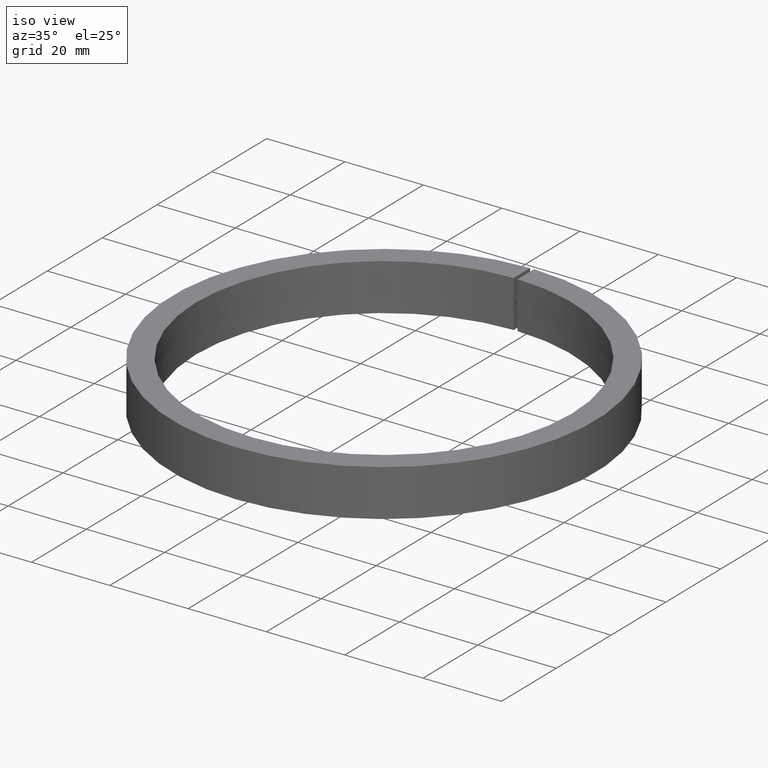
[diagram: clean part render]
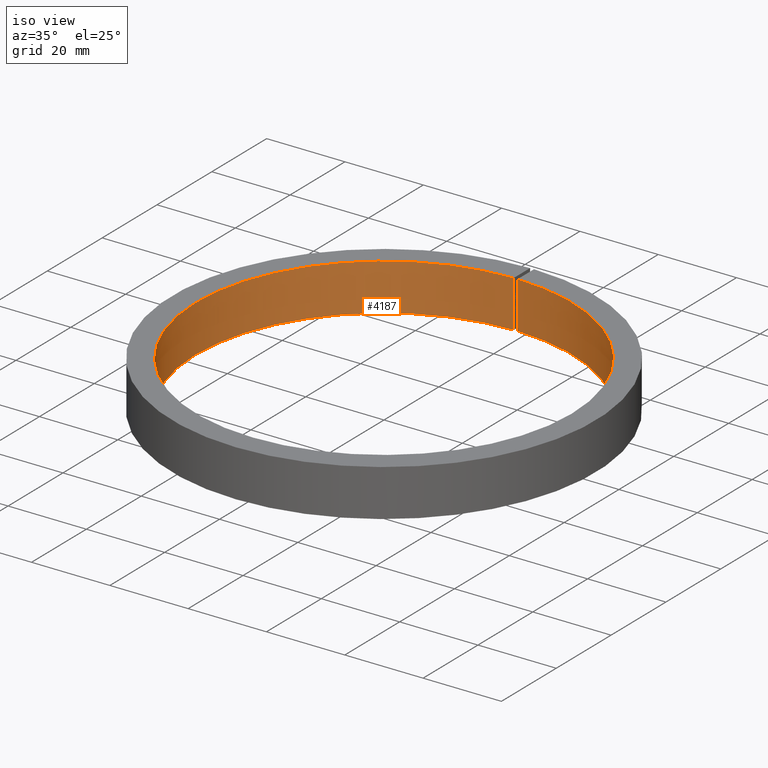
[diagram: same view with one face highlighted and labeled with its STEP entity id]
A machine part, iso view. The second image highlights one B-rep face of the part: STEP entity #4187.
In plain terms, the highlighted cylindrical surface (partial cylindrical patch) has radius 48 mm, axis along (-0, -0, -1).
Its self-contained STEP definition (entity closure, byte-faithful):
#159 = FACE_OUTER_BOUND ( 'NONE', #11526, .T. ) ;
#986 = EDGE_CURVE ( 'NONE', #9108, #4882, #10826, .T. ) ;
#1375 = ORIENTED_EDGE ( 'NONE', *, *, #3252, .F. ) ;
#1768 = VERTEX_POINT ( 'NONE', #7676 ) ;
#1870 = DIRECTION ( 'NONE',  ( -0.0000000000000000000, -0.0000000000000000000, -1.000000000000000000 ) ) ;
#1974 = CARTESIAN_POINT ( 'NONE',  ( 0.0000000000000000000, 0.0000000000000000000, -6.000000000000004400 ) ) ;
#2564 = CARTESIAN_POINT ( 'NONE',  ( 0.0000000000000000000, 0.0000000000000000000, 0.0000000000000000000 ) ) ;
#2723 = AXIS2_PLACEMENT_3D ( 'NONE', #1974, #8504, #4711 ) ;
#3252 = EDGE_CURVE ( 'NONE', #4882, #1768, #10226, .T. ) ;
#3523 = DIRECTION ( 'NONE',  ( -0.0000000000000000000, -0.0000000000000000000, -1.000000000000000000 ) ) ;
#3744 = DIRECTION ( 'NONE',  ( -1.000000000000000000, 0.0000000000000000000, 0.0000000000000000000 ) ) ;
#3840 = DIRECTION ( 'NONE',  ( -0.0000000000000000000, -0.0000000000000000000, 1.000000000000000000 ) ) ;
#3854 = AXIS2_PLACEMENT_3D ( 'NONE', #2564, #3523, #6651 ) ;
#4187 = ADVANCED_FACE ( 'NONE', ( #159 ), #11672, .F. ) ;
#4612 = VERTEX_POINT ( 'NONE', #6974 ) ;
#4711 = DIRECTION ( 'NONE',  ( -1.000000000000000000, 0.0000000000000000000, 0.0000000000000000000 ) ) ;
#4796 = VECTOR ( 'NONE', #3840, 1000.000000000000000 ) ;
#4828 = CARTESIAN_POINT ( 'NONE',  ( -0.5000000000000000000, 47.99739576268696300, -6.000000000000004400 ) ) ;
#4882 = VERTEX_POINT ( 'NONE', #12153 ) ;
#5039 = EDGE_CURVE ( 'NONE', #4612, #1768, #10343, .T. ) ;
#5985 = ORIENTED_EDGE ( 'NONE', *, *, #986, .F. ) ;
#6493 = ORIENTED_EDGE ( 'NONE', *, *, #11119, .T. ) ;
#6651 = DIRECTION ( 'NONE',  ( -1.000000000000000000, 0.0000000000000000000, 0.0000000000000000000 ) ) ;
#6830 = DIRECTION ( 'NONE',  ( -0.0000000000000000000, -0.0000000000000000000, 1.000000000000000000 ) ) ;
#6974 = CARTESIAN_POINT ( 'NONE',  ( -0.5000000000000000000, 47.99739576268696300, -6.000000000000004400 ) ) ;
#7676 = CARTESIAN_POINT ( 'NONE',  ( -0.5000000000000000000, 47.99739576268696300, 5.999999999999996400 ) ) ;
#8504 = DIRECTION ( 'NONE',  ( -0.0000000000000000000, -0.0000000000000000000, -1.000000000000000000 ) ) ;
#9108 = VERTEX_POINT ( 'NONE', #10683 ) ;
#9755 = VECTOR ( 'NONE', #6830, 1000.000000000000000 ) ;
#9806 = CIRCLE ( 'NONE', #2723, 48.00000000000000000 ) ;
#9852 = ORIENTED_EDGE ( 'NONE', *, *, #5039, .T. ) ;
#10226 = CIRCLE ( 'NONE', #11417, 48.00000000000000000 ) ;
#10343 = LINE ( 'NONE', #4828, #9755 ) ;
#10683 = CARTESIAN_POINT ( 'NONE',  ( 0.5000000000000000000, 47.99739576268696300, -6.000000000000004400 ) ) ;
#10826 = LINE ( 'NONE', #11401, #4796 ) ;
#11119 = EDGE_CURVE ( 'NONE', #9108, #4612, #9806, .T. ) ;
#11234 = CARTESIAN_POINT ( 'NONE',  ( 0.0000000000000000000, 0.0000000000000000000, 5.999999999999996400 ) ) ;
#11401 = CARTESIAN_POINT ( 'NONE',  ( 0.5000000000000000000, 47.99739576268696300, -6.000000000000004400 ) ) ;
#11417 = AXIS2_PLACEMENT_3D ( 'NONE', #11234, #1870, #3744 ) ;
#11526 = EDGE_LOOP ( 'NONE', ( #1375, #5985, #6493, #9852 ) ) ;
#11672 = CYLINDRICAL_SURFACE ( 'NONE', #3854, 48.00000000000000000 ) ;
#12153 = CARTESIAN_POINT ( 'NONE',  ( 0.5000000000000000000, 47.99739576268696300, 5.999999999999996400 ) ) ;